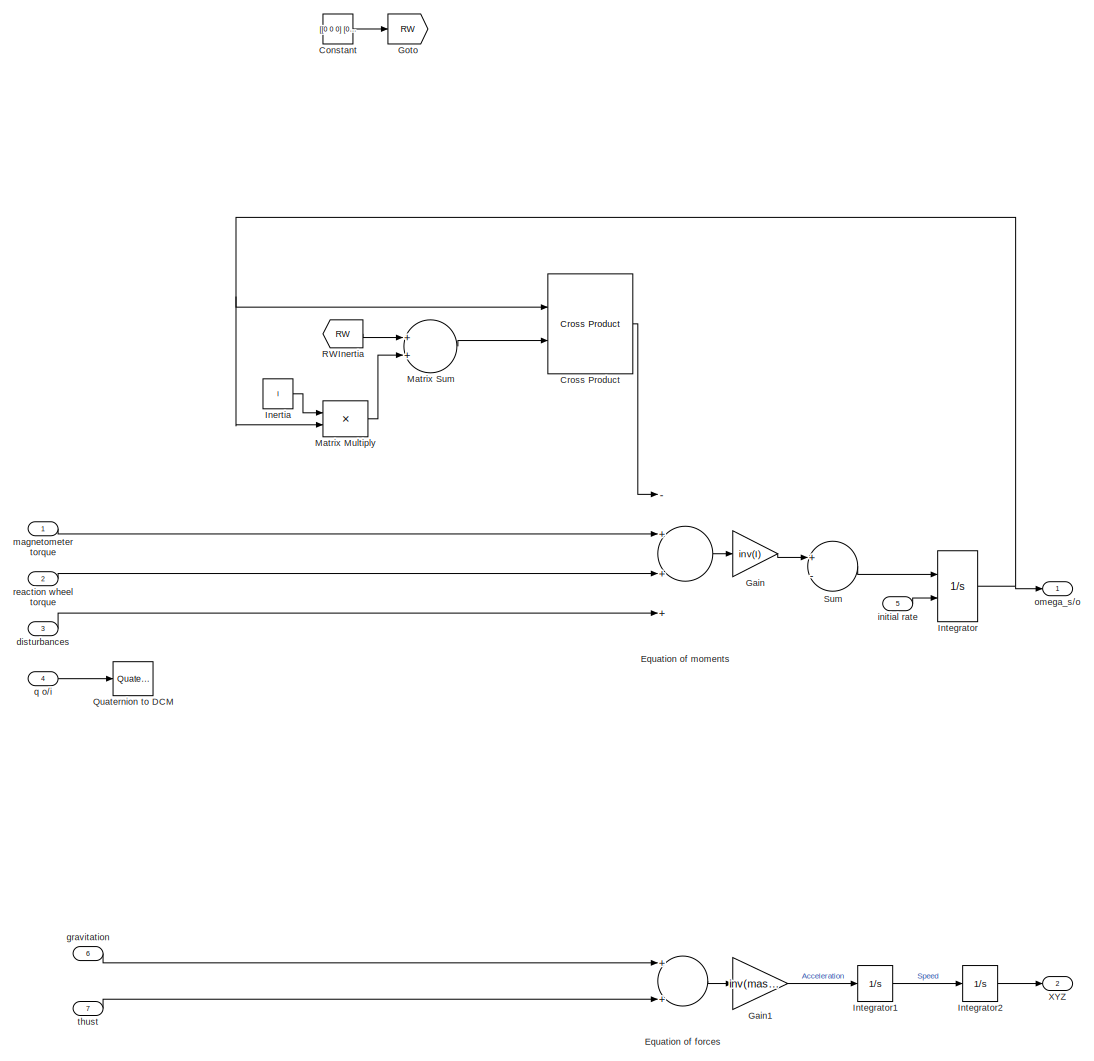
[diagram: root canvas - part 1/1, most of the canvas]
MODEL slx_18ab1e3d5d4d
KIND model
CONFIG AbsTol = auto
CONFIG EnableMultiTasking = off
CONFIG FixedStep = auto
CONFIG MaxStep = auto
CONFIG MinStep = auto
CONFIG RelTol = 1e-3
CONFIG SampleTimeConstraint = Unconstrained
CONFIG Solver = VariableStepAuto
CONFIG SolverName = VariableStepAuto
CONFIG StartTime = 0.0
CONFIG StopTime = 10.0
WORKSPACE source: mxarray member
WORKSPACE Inertia = 1
BLOCK [Constant] Constant
  Value = [[0 0 0] [0 0 0] [0 0 0]]
  VectorParams1D = off
BLOCK [Reference] Cross Product  REF=vrlib/Utilities/Cross Product
  Ports = [2, 1]
  SourceBlock = vrlib/Utilities/Cross Product
  SourceProductBaseCode = SL
  SourceProductName = Simulink
  SourceType = Cross Product
BLOCK [Sum] Equation of forces
  InputSameDT = off
  OutDataTypeStr = Inherit: Inherit via internal rule
  Ports = [2, 1]
  SaturateOnIntegerOverflow = off
BLOCK [Sum] Equation of moments
  InputSameDT = off
  Inputs = -+++
  OutDataTypeStr = Inherit: Inherit via internal rule
  Ports = [4, 1]
  SaturateOnIntegerOverflow = off
BLOCK [Gain] Gain
  Gain = inv(I)
  Multiplication = Matrix(K*u)
  OutDataTypeStr = Inherit: Inherit via internal rule
  ParamDataTypeStr = Inherit: Inherit via internal rule
  SaturateOnIntegerOverflow = off
BLOCK [Gain] Gain1
  Gain = inv(mass)
  OutDataTypeStr = Inherit: Inherit via internal rule
  ParamDataTypeStr = Inherit: Inherit via internal rule
  SaturateOnIntegerOverflow = off
BLOCK [Goto] Goto
  GotoTag = RW
BLOCK [Constant] Inertia
  Value = I
BLOCK [Integrator] Integrator
  InitialConditionSource = external
  Ports = [2, 1]
BLOCK [Integrator] Integrator1
  Ports = [1, 1]
BLOCK [Integrator] Integrator2
  Ports = [1, 1]
BLOCK [Product] Matrix Multiply
  InputSameDT = off
  Multiplication = Matrix(*)
  OutDataTypeStr = Inherit: Inherit via internal rule
  Ports = [2, 1]
  RndMeth = Floor
  SaturateOnIntegerOverflow = off
BLOCK [Sum] Matrix Sum
  InputSameDT = off
  OutDataTypeStr = Inherit: Inherit via internal rule
  Ports = [2, 1]
  SaturateOnIntegerOverflow = off
BLOCK [Reference] Quaternion to DCM  REF=qlib/Quaternion  (lib defined in mdl_ab4d631060dc, slx_f623738634e3)
to DCM
  Ports = [1, 1]
  SourceBlock = qlib/Quaternion\nto DCM
  SourceType = Quaternion to DCM
BLOCK [From] RWInertia
  GotoTag = RW
BLOCK [Sum] Sum
  InputSameDT = off
  Inputs = +-
  OutDataTypeStr = Inherit: Inherit via internal rule
  Ports = [2, 1]
  SaturateOnIntegerOverflow = off
BLOCK [Outport] XYZ
  IconDisplay = Port number
  Port = 2
BLOCK [Inport] disturbances
  IconDisplay = Port number
  Port = 3
BLOCK [Inport] gravitation
  IconDisplay = Port number
  Port = 6
BLOCK [Inport] initial rate
  IconDisplay = Port number
  Port = 5
BLOCK [Inport] magnetometer torque
  IconDisplay = Port number
BLOCK [Outport] omega_s//o
  IconDisplay = Port number
BLOCK [Inport] q o//i
  IconDisplay = Port number
  Port = 4
BLOCK [Inport] reaction wheel torque
  IconDisplay = Port number
  Port = 2
BLOCK [Inport] thust
  IconDisplay = Port number
  Port = 7
LINE Constant:1 -> Goto:1
LINE Cross Product:1 -> Equation of moments:1
LINE Equation of forces:1 -> Gain1:1
LINE Equation of moments:1 -> Gain:1
LINE Gain1:1 -> Integrator1:1
LINE Gain:1 -> Sum:1
LINE Inertia:1 -> Matrix Multiply:1
LINE Integrator1:1 -> Integrator2:1
LINE Integrator2:1 -> XYZ:1
NET Integrator:1 -> Cross Product:1, Matrix Multiply:2, omega_s//o:1
LINE Matrix Multiply:1 -> Matrix Sum:2
LINE Matrix Sum:1 -> Cross Product:2
LINE RWInertia:1 -> Matrix Sum:1
LINE Sum:1 -> Integrator:1
LINE disturbances:1 -> Equation of moments:4
LINE gravitation:1 -> Equation of forces:1
LINE initial rate:1 -> Integrator:2
LINE magnetometer torque:1 -> Equation of moments:2
LINE q o//i:1 -> Quaternion to DCM:1
LINE reaction wheel torque:1 -> Equation of moments:3
LINE thust:1 -> Equation of forces:2
note: NET lines group one-source signal fan-out (src -> all destinations, sorted); 1:1 wires keep LINE
